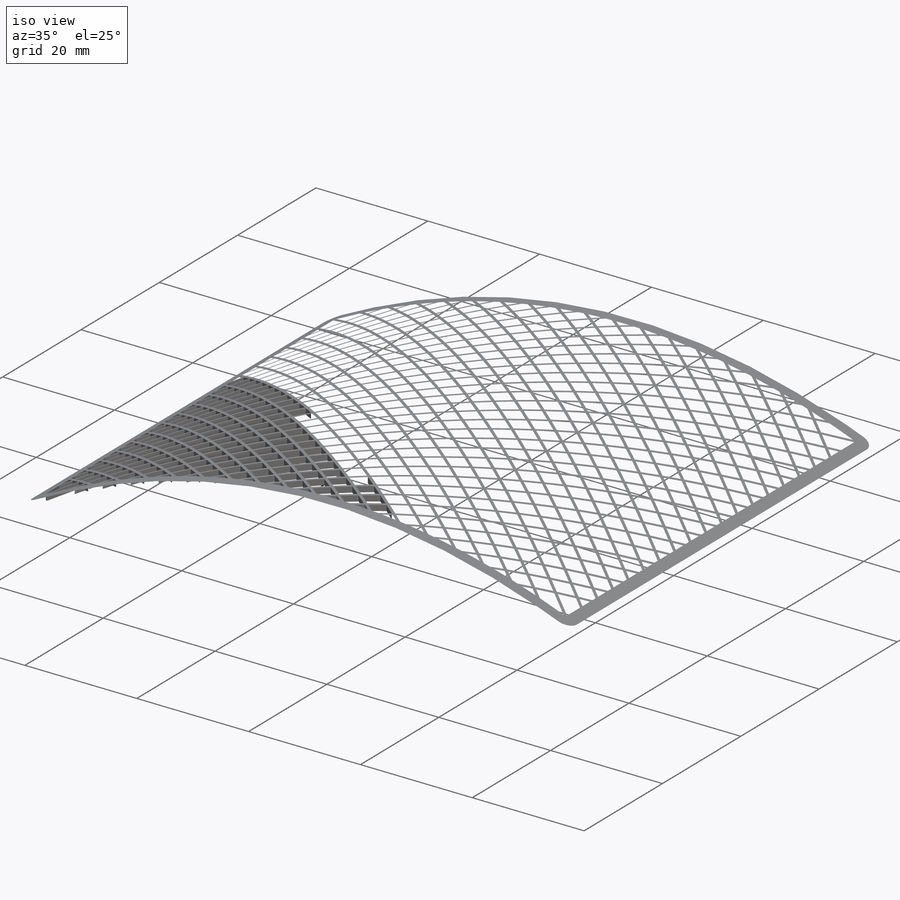
[diagram: iso view]
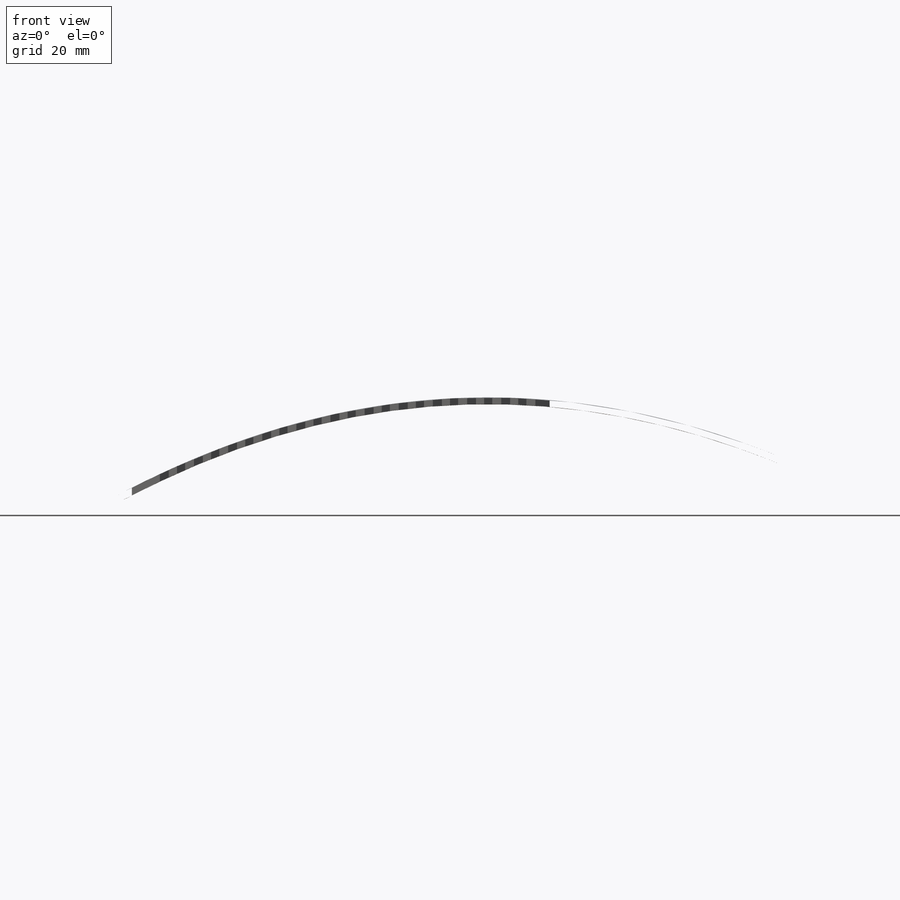
[diagram: front view]
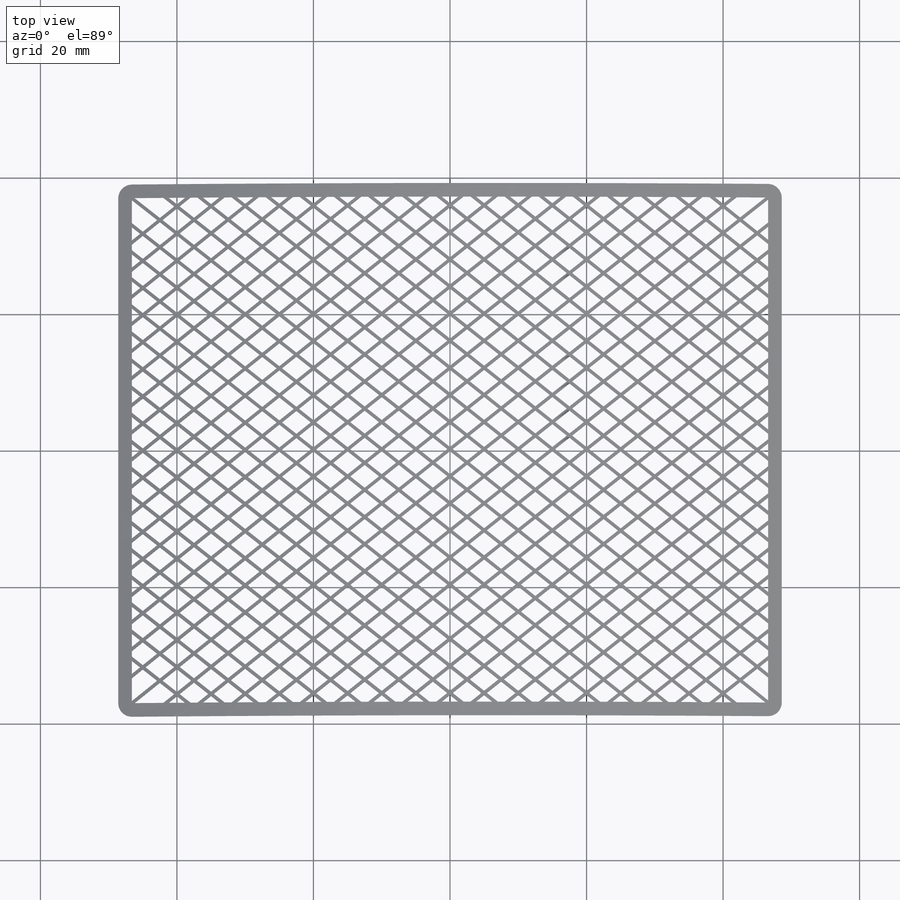
[diagram: top view]
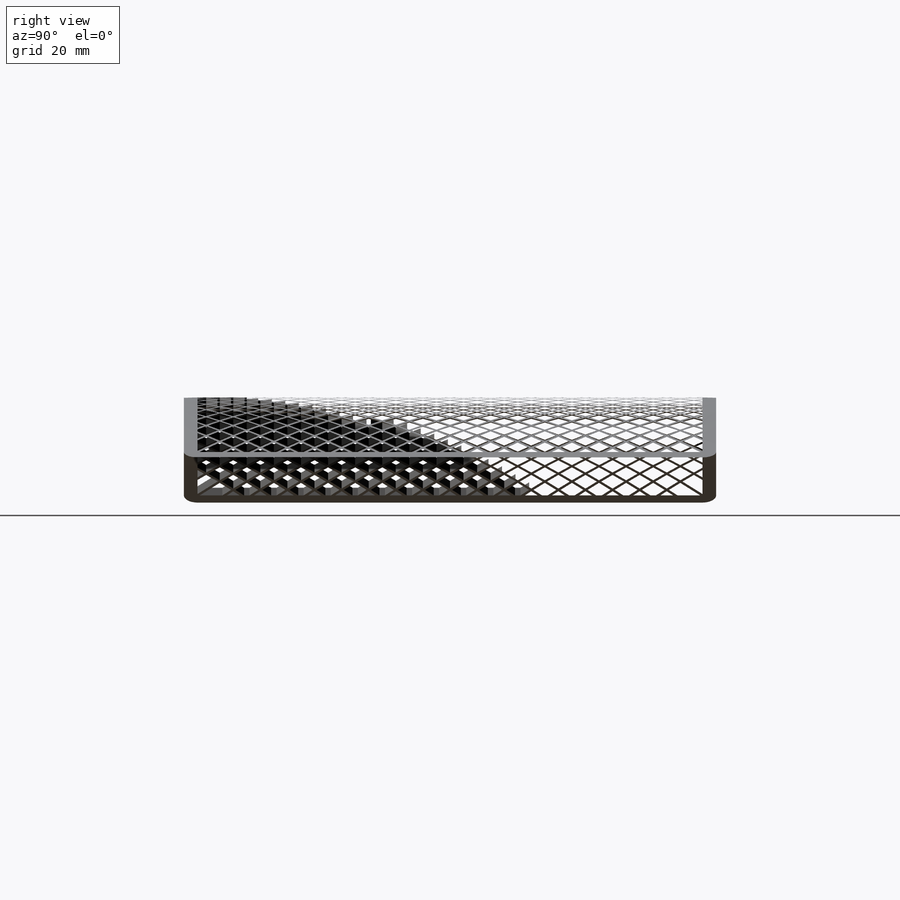
[diagram: right view]
SOLIDWORKS PART (.sldprt)
format: sldprt  version: not decoded by parser v0  size: 4,906,496 bytes
history: native  units: mm
features: sketch x3, material x1, surface_op x1, extrude x1, shell x1, plane x1, boolean_combine x1, fillet x1 (+12 scaffold rows collapsed)
feature tree (22):
  scaffold x12  (default folders/planes/origin — collapsed)
  material  "Material <not specified>"
  sketch  "Sketch1"
  surface_op  "Surface-Extrude1"
  sketch  "Sketch2"  dims[c1.D1=~77.982017mm c1.D2=~97.196324mm c2.D1=1.0mm]
  extrude  "Boss-Extrude2"  Depth=50mm
  shell  "Shell1"  Thickness=2mm
  sketch  "Sketch7"  dims[c1.D1=~73.982017mm c1.D2=~93.196324mm c2.D1=~40.344884mm c2.D2=~13.232345mm c3.D1=~35.629209mm c3.D2=~65.427903mm c4.D1=18.0 c4.D2=18.0 c4.D3=18.0 c5.D1=0.5mm]
  plane  "Plane1"
  boolean_combine  "Combine4"
  fillet  "Fillet1"  Radius=2mm
decode coverage: 5 of 8 modeling features carry decoded parameters
note: ~ marks probable driven/reference dimensions
note: suppression state not decoded; provenance and decode notes live in map.json
